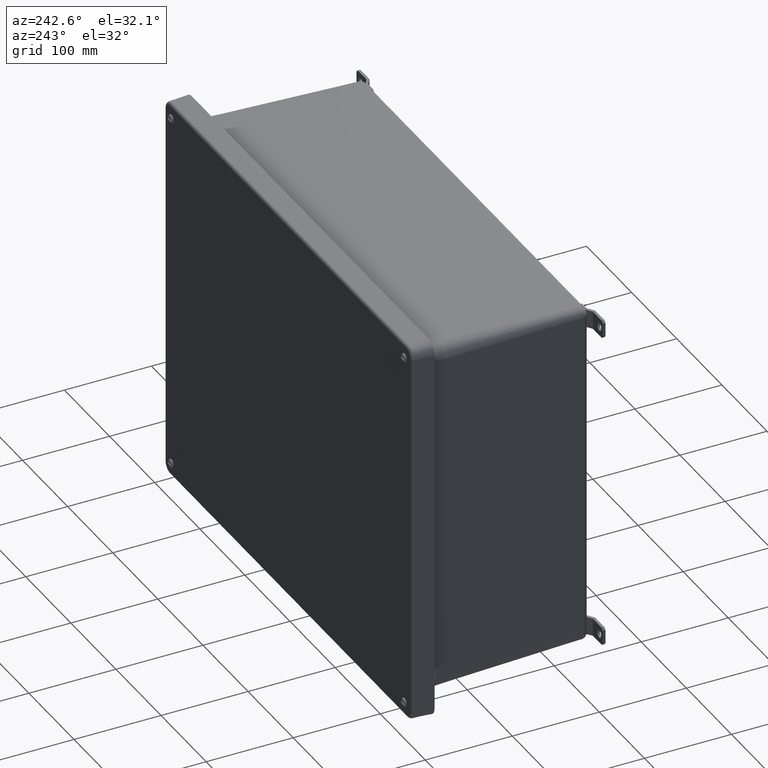
[diagram: clean part render]
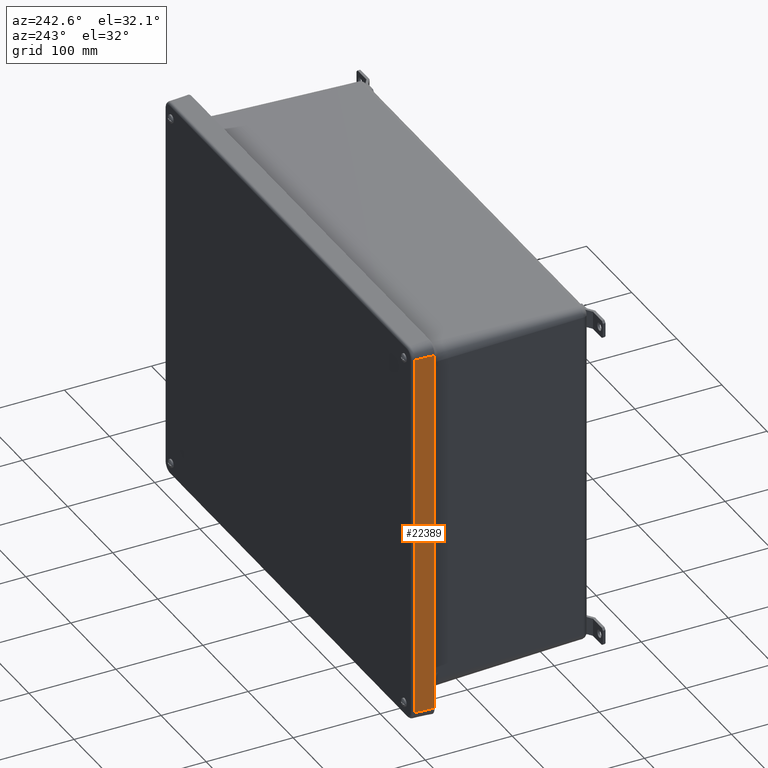
[diagram: same view with one face highlighted and labeled with its STEP entity id]
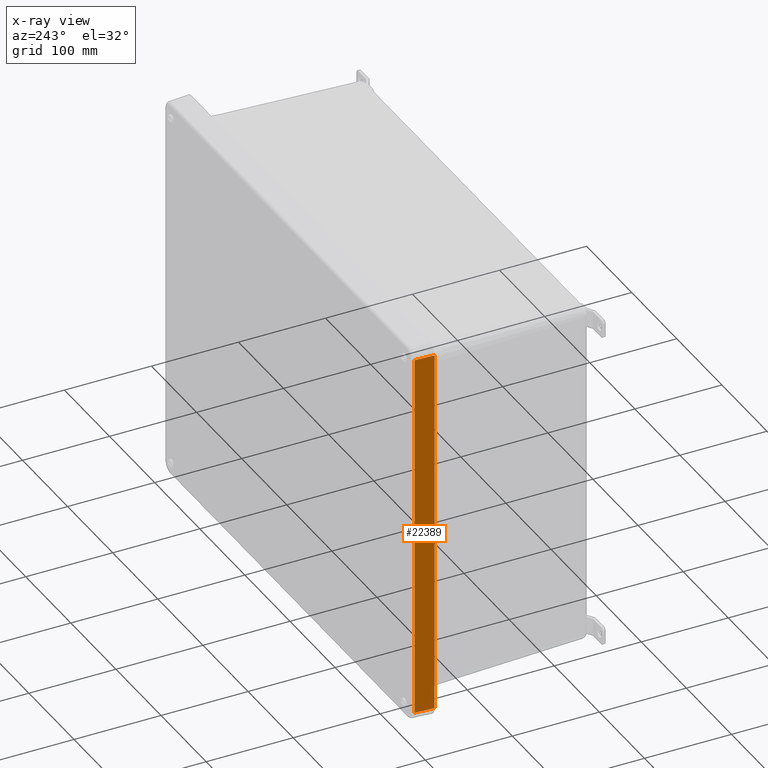
[diagram: x-ray of the same camera — body ghosted, the highlighted face saturated]
A machine part, auxiliary view. The second image highlights one B-rep face of the part: STEP entity #22389.
The next image is the same camera in x-ray: the body ghosted, the highlighted face saturated — about 0% of this face is hidden behind the body in this view.
In plain terms, the highlighted planar face has unit normal (-0.9986, 0.0523, 0).
Its self-contained STEP definition (entity closure, byte-faithful):
#382 = DIRECTION ( 'NONE',  ( -0.05233595624294395300, -0.9986295347545738300, 0.0000000000000000000 ) ) ;
#1747 = CARTESIAN_POINT ( 'NONE',  ( -10.84640777928304300, -1.000000000000000200, -8.356999999999995800 ) ) ;
#2806 = CARTESIAN_POINT ( 'NONE',  ( -10.84640777928304300, -1.000000000000000200, -8.356999999999995800 ) ) ;
#2952 = EDGE_CURVE ( 'NONE', #45713, #25775, #14945, .T. ) ;
#5388 = ORIENTED_EDGE ( 'NONE', *, *, #6876, .F. ) ;
#5488 = LINE ( 'NONE', #38390, #34871 ) ;
#6876 = EDGE_CURVE ( 'NONE', #20462, #15578, #5488, .T. ) ;
#8030 = ORIENTED_EDGE ( 'NONE', *, *, #26842, .T. ) ;
#8708 = CARTESIAN_POINT ( 'NONE',  ( -10.84640777928304100, -1.000000000000000200, 8.356999999999997500 ) ) ;
#14945 = LINE ( 'NONE', #20373, #33390 ) ;
#15578 = VERTEX_POINT ( 'NONE', #45162 ) ;
#17845 = LINE ( 'NONE', #2806, #46007 ) ;
#18763 = CARTESIAN_POINT ( 'NONE',  ( -10.79400000000000000, 0.0000000000000000000, -8.356999999999995800 ) ) ;
#20373 = CARTESIAN_POINT ( 'NONE',  ( -10.79399999999999900, 0.0000000000000000000, 8.356999999999997500 ) ) ;
#20462 = VERTEX_POINT ( 'NONE', #1747 ) ;
#22389 = ADVANCED_FACE ( 'NONE', ( #44580 ), #44477, .T. ) ;
#22457 = DIRECTION ( 'NONE',  ( -0.9986295347545739400, 0.05233595624294396000, 1.305781544062779000E-016 ) ) ;
#25775 = VERTEX_POINT ( 'NONE', #28070 ) ;
#26842 = EDGE_CURVE ( 'NONE', #20462, #45713, #17845, .T. ) ;
#27769 = DIRECTION ( 'NONE',  ( 0.05233595624294396600, 0.9986295347545738300, -6.843311095311100200E-018 ) ) ;
#28070 = CARTESIAN_POINT ( 'NONE',  ( -10.80020812100496000, -0.1184580054696319500, 8.356999999999997500 ) ) ;
#29371 = CARTESIAN_POINT ( 'NONE',  ( -10.80020812100496200, -0.1184580054696319500, -8.356999999999995800 ) ) ;
#31002 = DIRECTION ( 'NONE',  ( 0.05233595624294396600, 0.9986295347545738300, -3.926056120607429100E-016 ) ) ;
#33390 = VECTOR ( 'NONE', #27769, 39.37007874015748100 ) ;
#34644 = VECTOR ( 'NONE', #40461, 39.37007874015748100 ) ;
#34871 = VECTOR ( 'NONE', #31002, 39.37007874015748100 ) ;
#34939 = EDGE_LOOP ( 'NONE', ( #37231, #38200, #5388, #8030 ) ) ;
#37231 = ORIENTED_EDGE ( 'NONE', *, *, #2952, .T. ) ;
#37499 = AXIS2_PLACEMENT_3D ( 'NONE', #18763, #22457, #382 ) ;
#38200 = ORIENTED_EDGE ( 'NONE', *, *, #44003, .T. ) ;
#38390 = CARTESIAN_POINT ( 'NONE',  ( -10.79400000000000000, 0.0000000000000000000, -8.356999999999995800 ) ) ;
#40461 = DIRECTION ( 'NONE',  ( -1.307573528138932400E-016, 1.019879233448869000E-033, -1.000000000000000000 ) ) ;
#44003 = EDGE_CURVE ( 'NONE', #25775, #15578, #44392, .T. ) ;
#44392 = LINE ( 'NONE', #29371, #34644 ) ;
#44477 = PLANE ( 'NONE',  #37499 ) ;
#44580 = FACE_OUTER_BOUND ( 'NONE', #34939, .T. ) ;
#45162 = CARTESIAN_POINT ( 'NONE',  ( -10.80020812100496200, -0.1184580054696319500, -8.356999999999995800 ) ) ;
#45713 = VERTEX_POINT ( 'NONE', #8708 ) ;
#46007 = VECTOR ( 'NONE', #47007, 39.37007874015748100 ) ;
#47007 = DIRECTION ( 'NONE',  ( 1.307573528138932400E-016, 0.0000000000000000000, 1.000000000000000000 ) ) ;